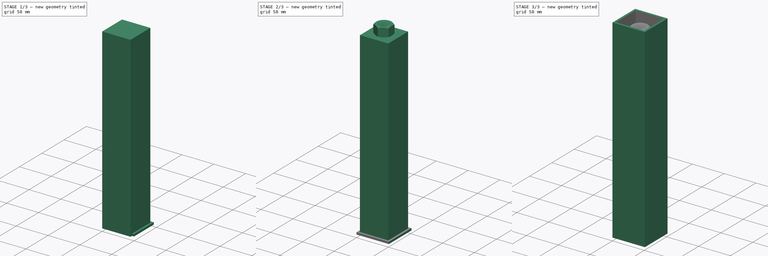
[diagram: build sequence overview — one tinted view per stage of 3, left to right]
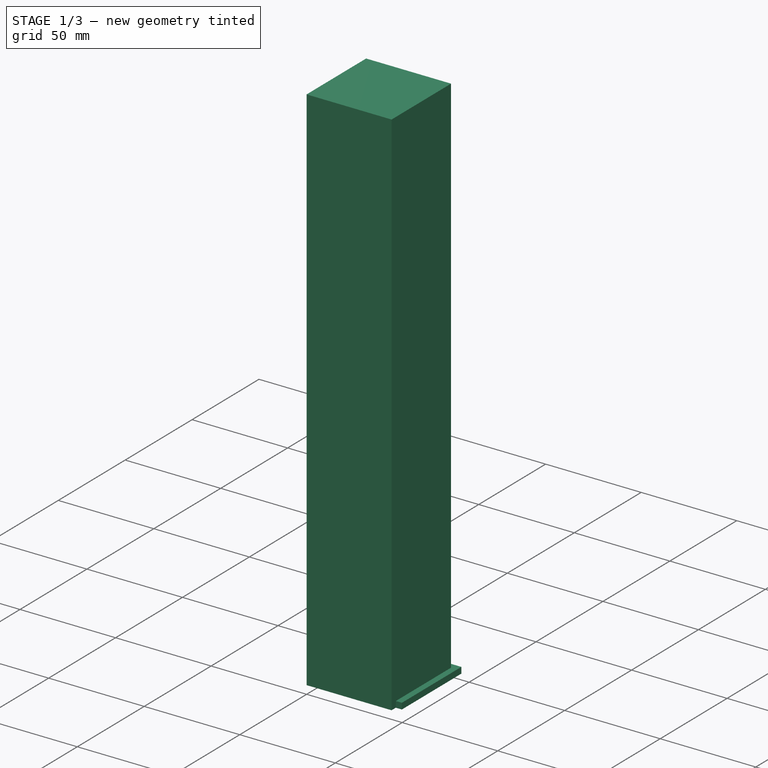
[diagram: stage 1 of 3 — iso view after this stage's code; geometry added in this stage tinted green]
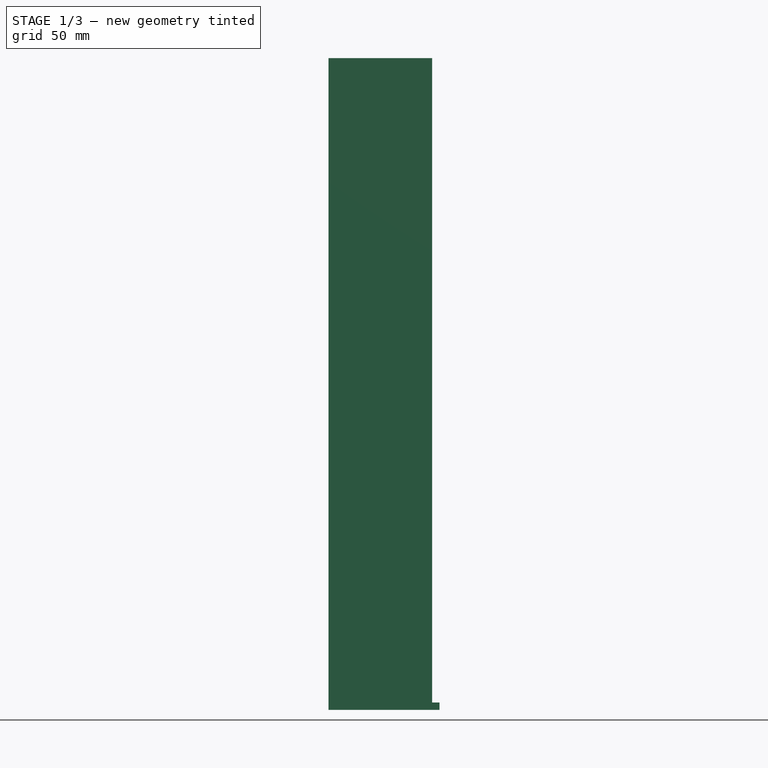
[diagram: stage 1 of 3 — front view after this stage's code; geometry added in this stage tinted green]
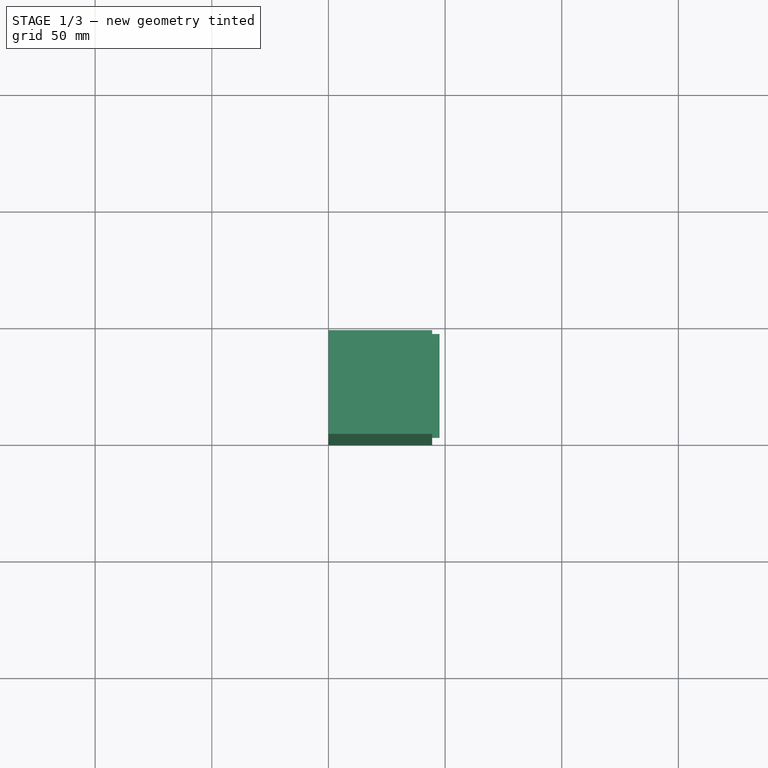
[diagram: stage 1 of 3 — top view after this stage's code; geometry added in this stage tinted green]
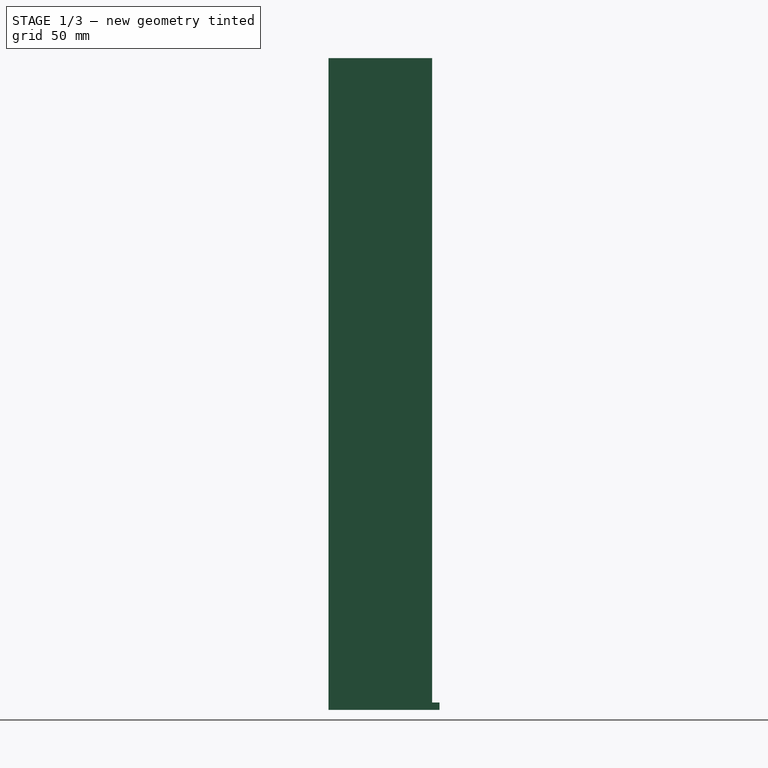
[diagram: stage 1 of 3 — right view after this stage's code; geometry added in this stage tinted green]
FCSTD DOCUMENT  (FreeCAD 0.17R13519 (Git))
Label: Trailer Master CAD
License: CreativeCommons Attribution-NonCommercial-ShareAlike
LicenseURL: http://creativecommons.org/licenses/by-nc-sa/4.0/
objects: Part::Box×2, Part::Thickness×2, Sketcher::SketchObject×2, PartDesign::Pad×2, PartDesign::Body×2, Part::Feature×2, Part::MultiFuse×1
note: 15 computed .brp shape members not serialized (recipe doc carries the construction recipe); baked Part::Feature solids carry a one-line shape summary decoded from their .brp

FEATURE [PartDesign::Body] Body  label="Cap of outer tube"
  Group = -> [Sketch,Pad]
  Origin = -> Origin
  Placement = pos=(0,0,304.8) rot=(0,0,1;0rad)
  Tip = -> Pad
FEATURE [Part::Feature] Part__Feature  label="Nut 5/8"
  Placement = pos=(25.7556,24.765,314.909) rot=(0,0,1;0rad)
  shape: bbox 27.5 x 27.5 x 15.64 mm, 42 faces (baked)
FEATURE [Part::Box] Box001  label="Cube001"
  AttacherType = Attacher::AttachEngine3D
  Height = 279.4
  Length = 44.45
  Width = 44.45
FEATURE [Sketcher::SketchObject] Sketch001
  MapMode = 5
  Support = -> [XY_Plane001]
  sketch-geometry (5):
    g0: LineSegment StartX=3.175 StartY=3.175 StartZ=0 EndX=47.625 EndY=3.175 EndZ=0
    g1: LineSegment StartX=47.625 StartY=3.175 StartZ=0 EndX=47.625 EndY=47.625 EndZ=0
    g2: LineSegment StartX=47.625 StartY=47.625 StartZ=0 EndX=3.175 EndY=47.625 EndZ=0
    g3: LineSegment StartX=3.175 StartY=47.625 StartZ=0 EndX=3.175 EndY=3.175 EndZ=0
    g4: Circle CenterX=25.4 CenterY=25.4 CenterZ=0 NormalX=0 NormalY=0 NormalZ=1 AngleXU=0 Radius=9.525
  constraints (15):
    c: Coincident(g0,g1)
    c: Coincident(g1,g2)
    c: Coincident(g2,g3)
    c: Coincident(g3,g0)
    c: Horizontal(g0)
    c: Horizontal(g2)
    c: Vertical(g1)
    c: Vertical(g3)
    c: Equal(g2,g1)
    c: DistanceX(g0,g0) = 44.45
    c: Radius(g4) = 9.525
    c: DistanceX(g0,g4) = 22.225
    c: DistanceY(g0,g4) = 22.225
    c: DistanceY(g0,g-1) = -3.175
    c: DistanceX(g-1,g0) = 3.175
FEATURE [PartDesign::Pad] Pad001
  Length = 3.175
  Length2 = 99.9998
  Profile = -> Sketch001
  Type = 0
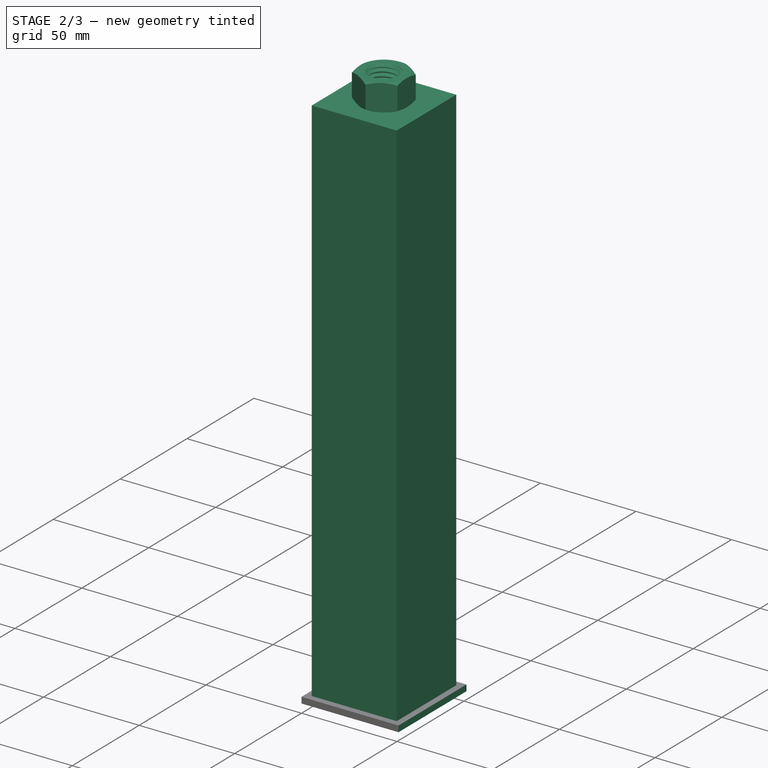
[diagram: stage 2 of 3 — iso view after this stage's code; geometry added in this stage tinted green]
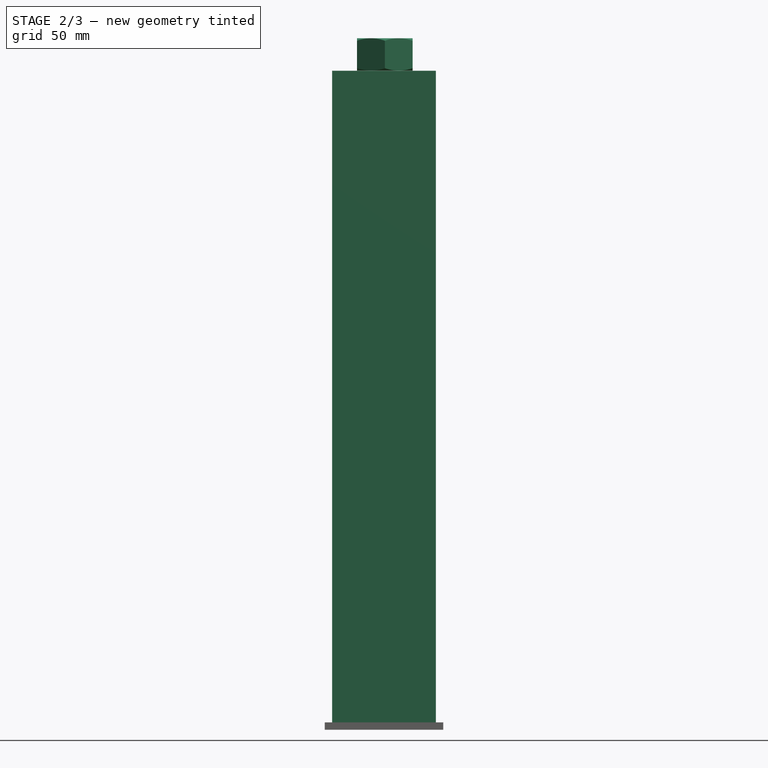
[diagram: stage 2 of 3 — front view after this stage's code; geometry added in this stage tinted green]
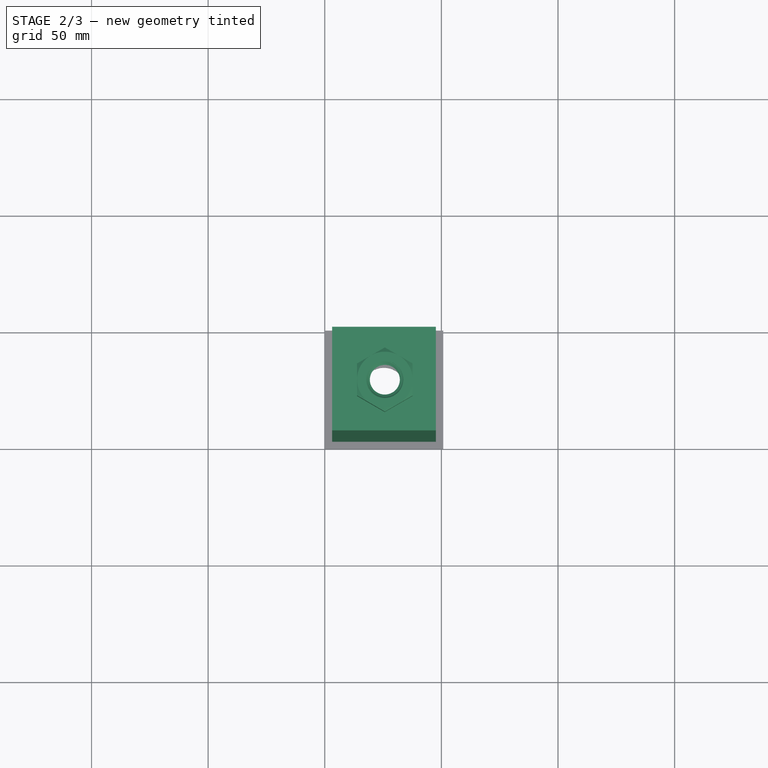
[diagram: stage 2 of 3 — top view after this stage's code; geometry added in this stage tinted green]
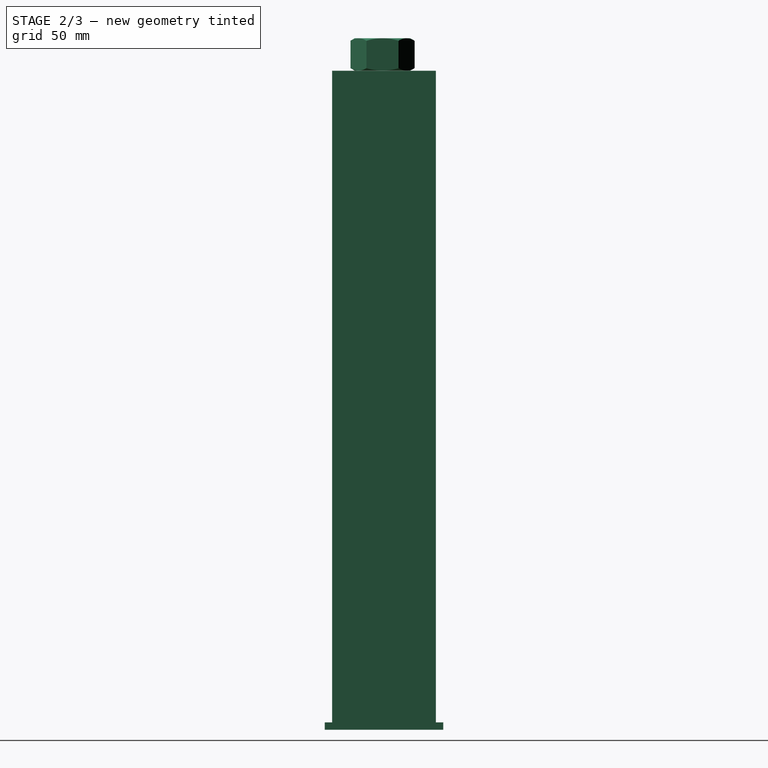
[diagram: stage 2 of 3 — right view after this stage's code; geometry added in this stage tinted green]
FEATURE [Sketcher::SketchObject] Sketch
  MapMode = 5
  Support = -> [XY_Plane]
  sketch-geometry (5):
    g0: LineSegment StartX=0 StartY=0 StartZ=0 EndX=50.8 EndY=0 EndZ=0
    g1: LineSegment StartX=50.8 StartY=0 StartZ=0 EndX=50.8 EndY=50.8 EndZ=0
    g2: LineSegment StartX=50.8 StartY=50.8 StartZ=0 EndX=0 EndY=50.8 EndZ=0
    g3: LineSegment StartX=0 StartY=50.8 StartZ=0 EndX=0 EndY=0 EndZ=0
    g4: Circle CenterX=25.4 CenterY=25.4 CenterZ=0 NormalX=0 NormalY=0 NormalZ=1 AngleXU=0 Radius=9.525
  constraints (14):
    c: Coincident(g0,g1)
    c: Coincident(g1,g2)
    c: Coincident(g2,g3)
    c: Coincident(g3,g0)
    c: Horizontal(g0)
    c: Horizontal(g2)
    c: Vertical(g1)
    c: Vertical(g3)
    c: Coincident(g0,g-1)
    c: Equal(g2,g1)
    c: DistanceX(g0,g0) = 50.8
    c: Radius(g4) = 9.525
    c: DistanceX(g4) = 25.4
    c: DistanceY(g4) = 25.4
FEATURE [PartDesign::Pad] Pad
  Length = 3.175
  Length2 = 99.9998
  Profile = -> Sketch
  Type = 0
FEATURE [Part::Thickness] Thickness001  label="Inner tube"
  Faces = -> Box001 [Face6,Face5]
  Intersection = false
  Join = 0
  Mode = 0
  Placement = pos=(3.175,3.175,0) rot=(0,0,1;0rad)
  SelfIntersection = false
  Value = -3.175
FEATURE [PartDesign::Body] Body001  label="Cap of inner tube"
  Group = -> [Sketch001,Pad001]
  Origin = -> Origin001
  Placement = pos=(0,0,279.4) rot=(0,0,1;0rad)
  Tip = -> Pad001
FEATURE [Part::Feature] Part__Feature001  label="Nut 5/009"
  Placement = pos=(25.7556,24.765,289.56) rot=(0,0,1;0rad)
  shape: bbox 27.5 x 27.5 x 15.64 mm, 42 faces (baked)
FEATURE [Part::MultiFuse] Fusion001  label="Inner Tube welded"
  Shapes = -> [Thickness001,Body001,Part__Feature001]
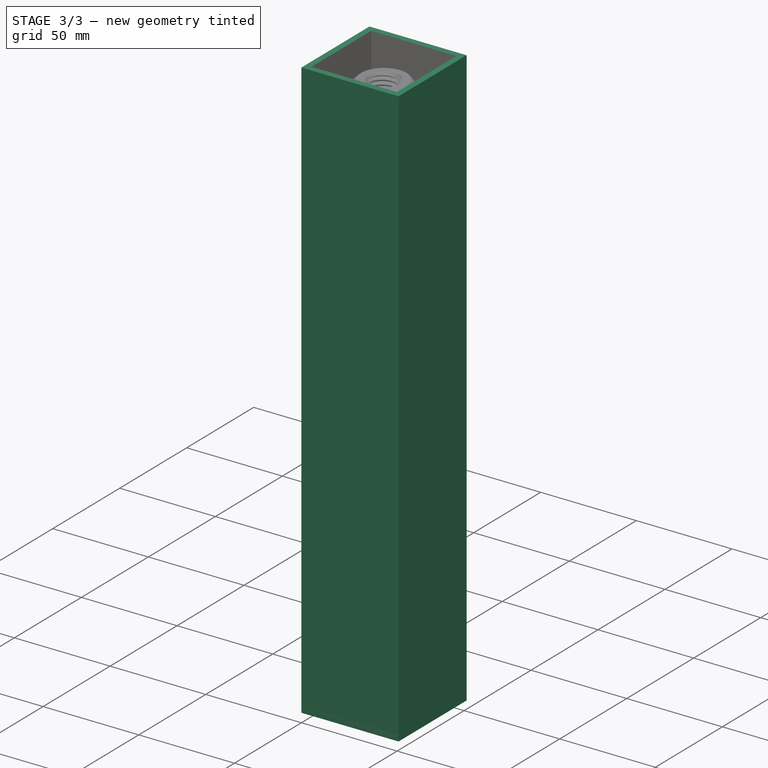
[diagram: stage 3 of 3 — iso view after this stage's code; geometry added in this stage tinted green]
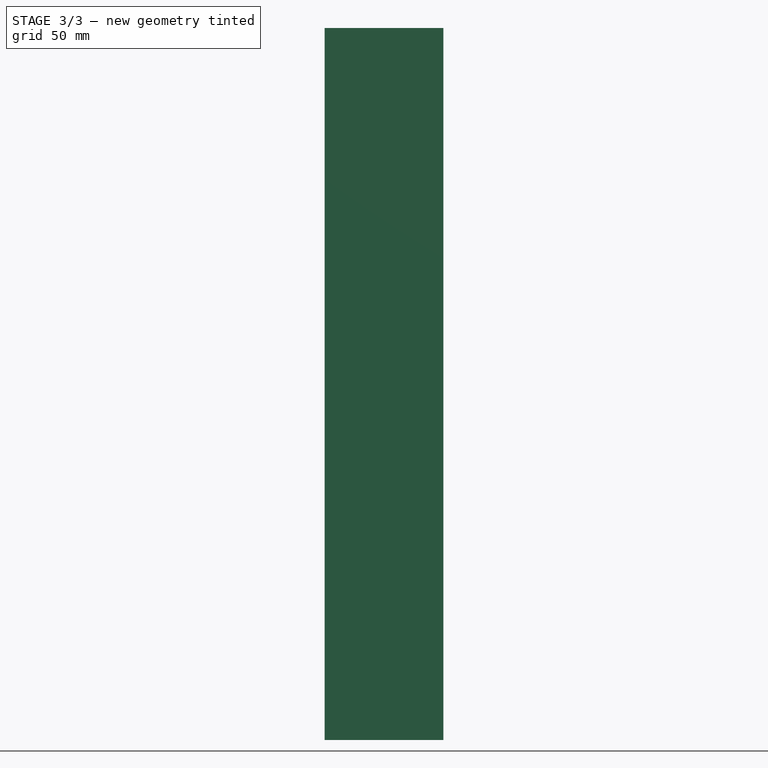
[diagram: stage 3 of 3 — front view after this stage's code; geometry added in this stage tinted green]
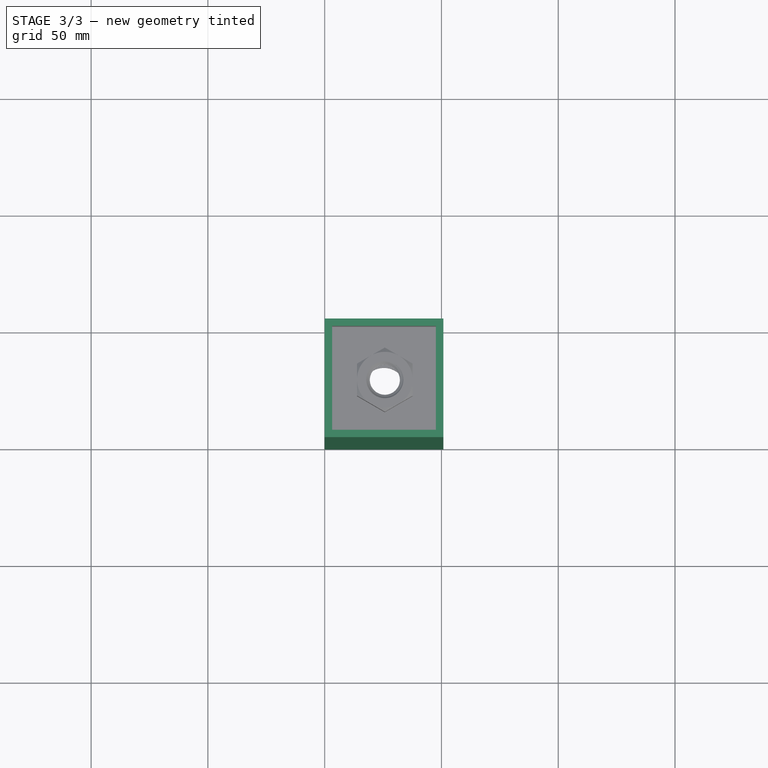
[diagram: stage 3 of 3 — top view after this stage's code; geometry added in this stage tinted green]
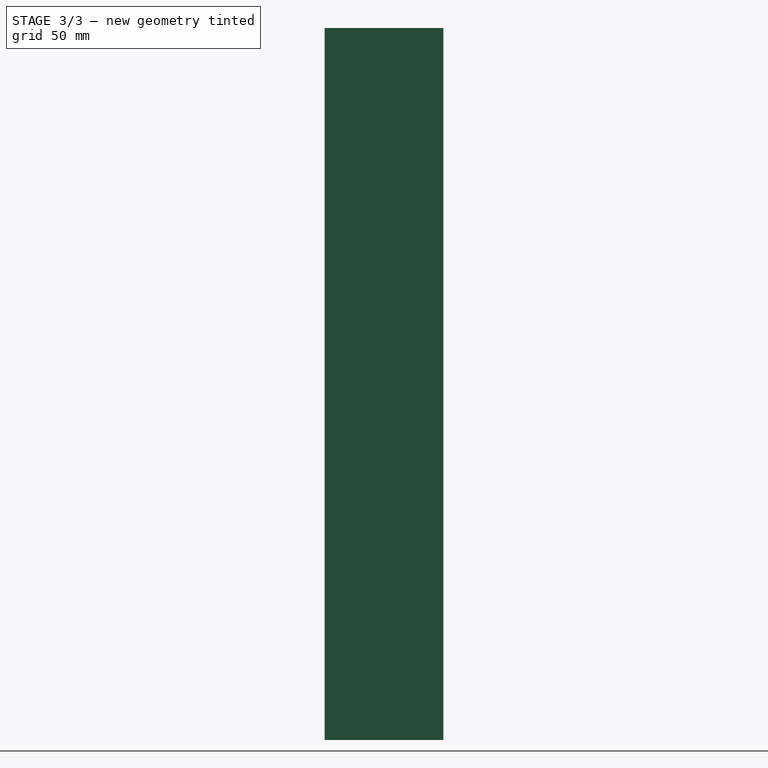
[diagram: stage 3 of 3 — right view after this stage's code; geometry added in this stage tinted green]
FEATURE [Part::Box] Box  label="Cube"
  AttacherType = Attacher::AttachEngine3D
  Height = 304.8
  Length = 50.8
  Width = 50.8
FEATURE [Part::Thickness] Thickness  label="Outer tube"
  Faces = -> Box [Face6,Face5]
  Intersection = false
  Join = 0
  Mode = 0
  SelfIntersection = false
  Value = -3.175
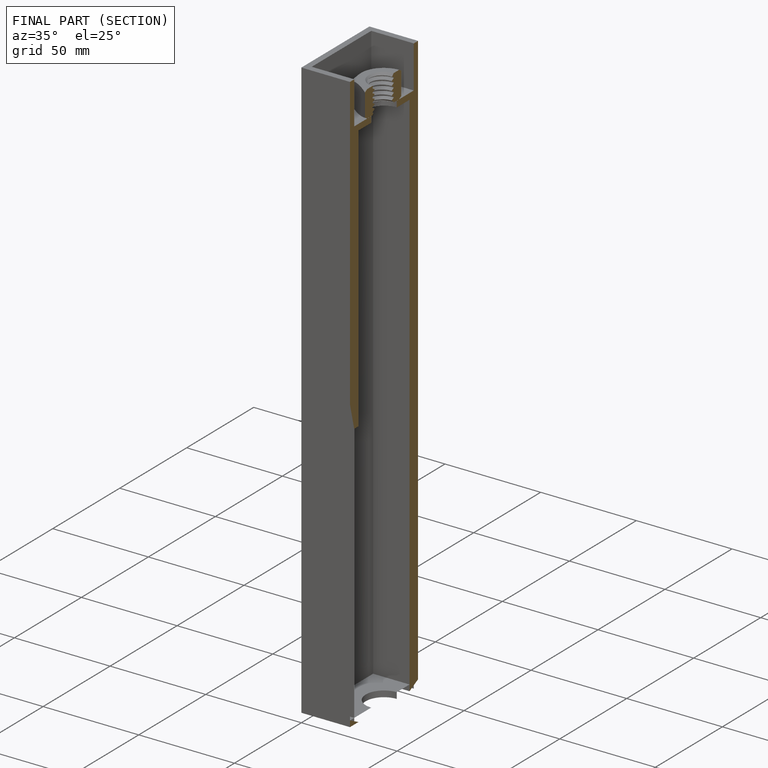
[diagram: finished part — half-section view (interior)]
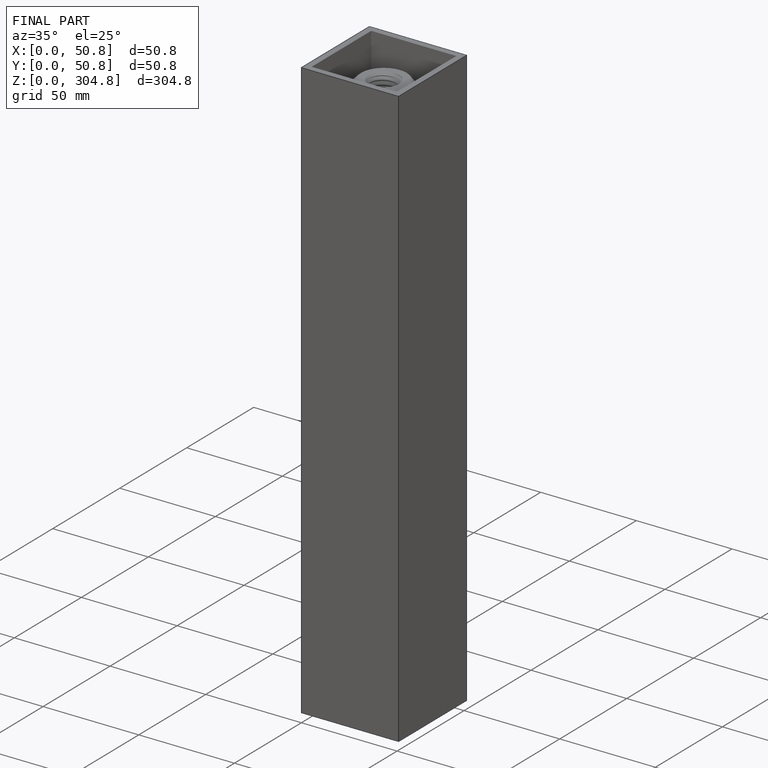
[diagram: finished part — iso view with bounding-box wireframe]
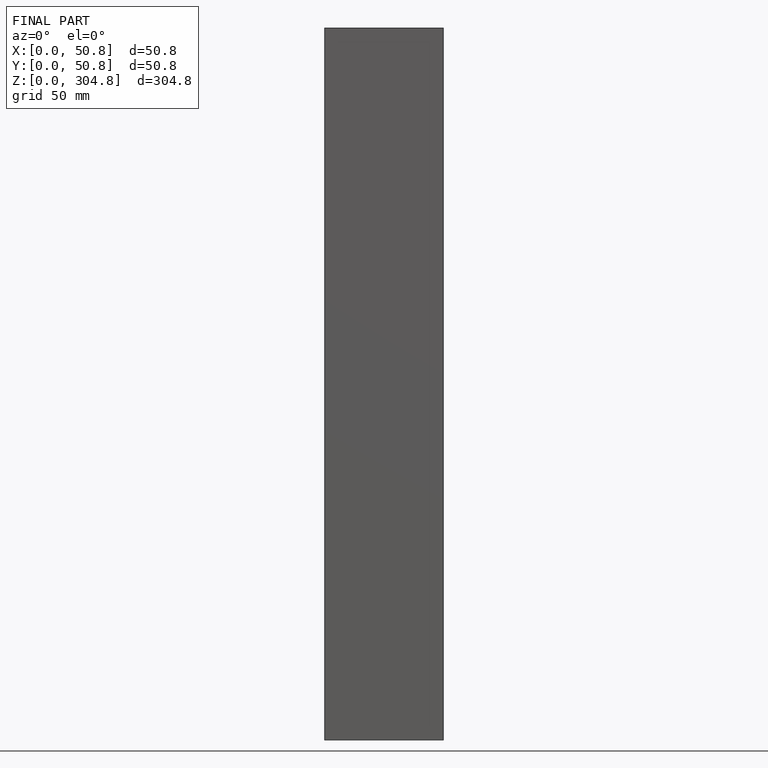
[diagram: finished part — front view with bounding-box wireframe]
